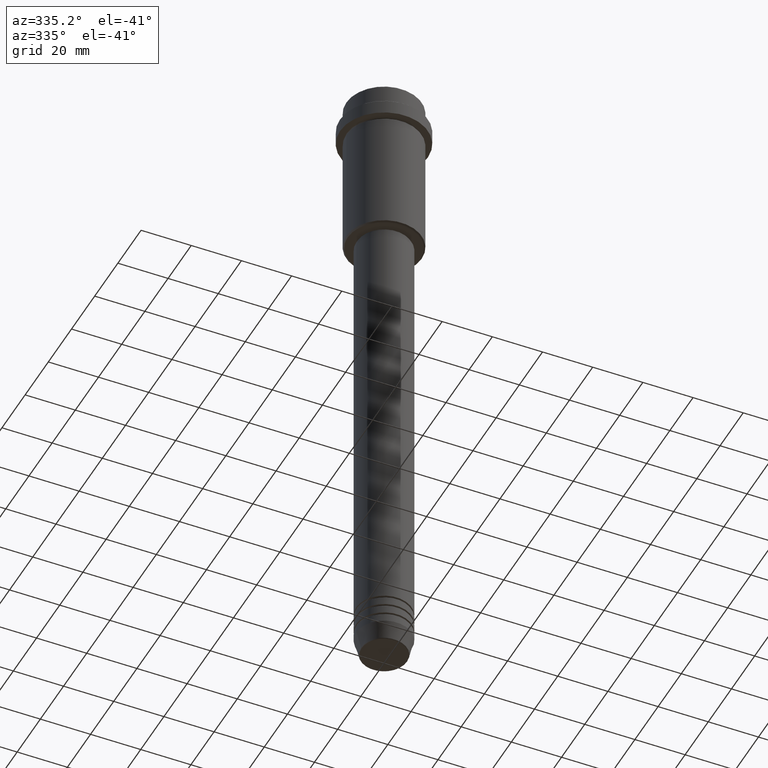
[diagram: clean part render]
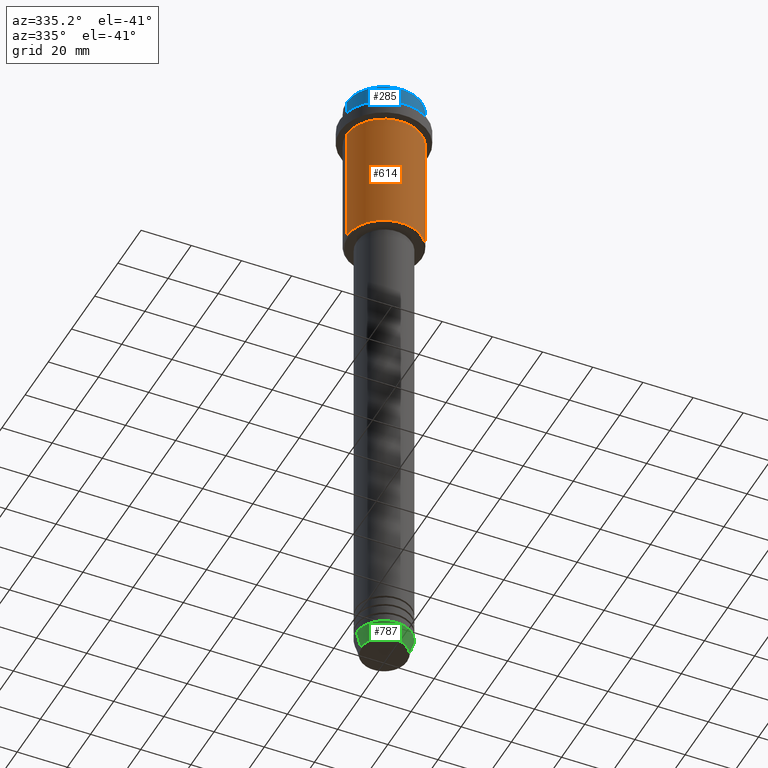
[diagram: same view with three faces highlighted in distinct colors, each labeled with its STEP entity id]
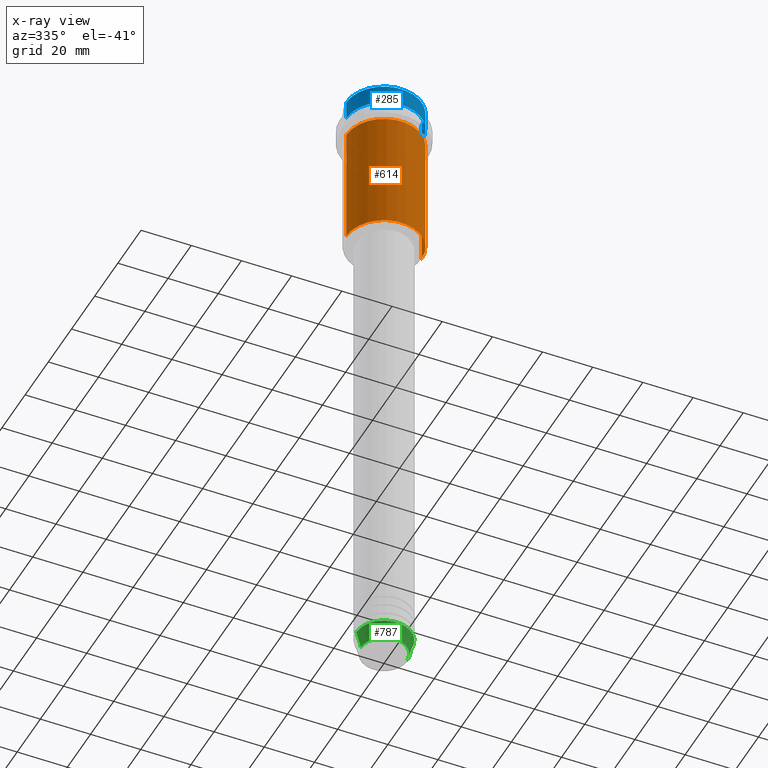
[diagram: x-ray of the same camera — body ghosted, the three highlighted faces saturated]
A machine part, auxiliary view with three faces highlighted in distinct colors.
The next image is the same camera in x-ray (body ghosted, the three faces saturated) — at least one of them is partly hidden behind the body in this view.
Their STEP definitions:

[orange] entity #614 — the highlighted cylindrical surface (partial cylindrical patch) has radius 15 mm, axis along (-0, -0, 1).
#39 = AXIS2_PLACEMENT_3D ( 'NONE', #1043, #170, #61 ) ;
#61 = DIRECTION ( 'NONE',  ( 1.000000000000000000, 0.000000000000000000, 0.000000000000000000 ) ) ;
#67 = ORIENTED_EDGE ( 'NONE', *, *, #513, .F. ) ;
#104 = CARTESIAN_POINT ( 'NONE',  ( -15.00000000000000000, 1.836970198721029589E-15, 0.000000000000000000 ) ) ;
#140 = EDGE_LOOP ( 'NONE', ( #67, #1231, #756, #618 ) ) ;
#165 = DIRECTION ( 'NONE',  ( -0.000000000000000000, -0.000000000000000000, 1.000000000000000000 ) ) ;
#170 = DIRECTION ( 'NONE',  ( -0.000000000000000000, -0.000000000000000000, 1.000000000000000000 ) ) ;
#251 = DIRECTION ( 'NONE',  ( 1.000000000000000000, 0.000000000000000000, 0.000000000000000000 ) ) ;
#281 = AXIS2_PLACEMENT_3D ( 'NONE', #1236, #1013, #710 ) ;
#327 = CARTESIAN_POINT ( 'NONE',  ( 15.00000000000000000, 0.000000000000000000, -64.49999999999995737 ) ) ;
#340 = CARTESIAN_POINT ( 'NONE',  ( 0.000000000000000000, 0.000000000000000000, -16.00000000000000000 ) ) ;
#343 = LINE ( 'NONE', #893, #1241 ) ;
#402 = CIRCLE ( 'NONE', #281, 15.00000000000000000 ) ;
#436 = AXIS2_PLACEMENT_3D ( 'NONE', #340, #1252, #251 ) ;
#513 = EDGE_CURVE ( 'NONE', #714, #794, #1081, .T. ) ;
#596 = CARTESIAN_POINT ( 'NONE',  ( 15.00000000000000178, 0.000000000000000000, -16.00000000000000000 ) ) ;
#606 = CYLINDRICAL_SURFACE ( 'NONE', #39, 15.00000000000000000 ) ;
#614 = ADVANCED_FACE ( 'NONE', ( #1026 ), #606, .T. ) ;
#618 = ORIENTED_EDGE ( 'NONE', *, *, #817, .F. ) ;
#620 = VERTEX_POINT ( 'NONE', #596 ) ;
#671 = EDGE_CURVE ( 'NONE', #714, #1359, #402, .T. ) ;
#678 = CARTESIAN_POINT ( 'NONE',  ( -15.00000000000000000, 1.836970198721029589E-15, -64.49999999999995737 ) ) ;
#703 = CIRCLE ( 'NONE', #436, 15.00000000000000178 ) ;
#710 = DIRECTION ( 'NONE',  ( -1.000000000000000000, 0.000000000000000000, 0.000000000000000000 ) ) ;
#714 = VERTEX_POINT ( 'NONE', #678 ) ;
#756 = ORIENTED_EDGE ( 'NONE', *, *, #857, .T. ) ;
#794 = VERTEX_POINT ( 'NONE', #966 ) ;
#817 = EDGE_CURVE ( 'NONE', #794, #620, #703, .T. ) ;
#857 = EDGE_CURVE ( 'NONE', #1359, #620, #343, .T. ) ;
#893 = CARTESIAN_POINT ( 'NONE',  ( 15.00000000000000000, 0.000000000000000000, 0.000000000000000000 ) ) ;
#966 = CARTESIAN_POINT ( 'NONE',  ( -15.00000000000000355, 1.836970198721029983E-15, -16.00000000000000000 ) ) ;
#1013 = DIRECTION ( 'NONE',  ( -0.000000000000000000, -0.000000000000000000, 1.000000000000000000 ) ) ;
#1026 = FACE_OUTER_BOUND ( 'NONE', #140, .T. ) ;
#1043 = CARTESIAN_POINT ( 'NONE',  ( 0.000000000000000000, 0.000000000000000000, 0.000000000000000000 ) ) ;
#1081 = LINE ( 'NONE', #104, #1291 ) ;
#1222 = DIRECTION ( 'NONE',  ( -0.000000000000000000, -0.000000000000000000, 1.000000000000000000 ) ) ;
#1231 = ORIENTED_EDGE ( 'NONE', *, *, #671, .T. ) ;
#1236 = CARTESIAN_POINT ( 'NONE',  ( 0.000000000000000000, 0.000000000000000000, -64.49999999999995737 ) ) ;
#1241 = VECTOR ( 'NONE', #1222, 1000.000000000000000 ) ;
#1252 = DIRECTION ( 'NONE',  ( -0.000000000000000000, -0.000000000000000000, 1.000000000000000000 ) ) ;
#1291 = VECTOR ( 'NONE', #165, 1000.000000000000000 ) ;
#1359 = VERTEX_POINT ( 'NONE', #327 ) ;

[blue] entity #285 — the highlighted cylindrical surface (partial cylindrical patch) has radius 15 mm, axis along (-0, -0, 1).
#21 = EDGE_LOOP ( 'NONE', ( #1270, #372, #740, #684 ) ) ;
#34 = DIRECTION ( 'NONE',  ( 1.000000000000000000, 0.000000000000000000, 0.000000000000000000 ) ) ;
#71 = LINE ( 'NONE', #841, #1189 ) ;
#133 = AXIS2_PLACEMENT_3D ( 'NONE', #858, #1295, #216 ) ;
#175 = AXIS2_PLACEMENT_3D ( 'NONE', #697, #924, #1039 ) ;
#216 = DIRECTION ( 'NONE',  ( 1.000000000000000000, 0.000000000000000000, 0.000000000000000000 ) ) ;
#228 = CARTESIAN_POINT ( 'NONE',  ( -15.00000000000000000, 1.836970198721029589E-15, 0.000000000000000000 ) ) ;
#279 = CARTESIAN_POINT ( 'NONE',  ( -15.00000000000000000, 1.836970198721029589E-15, -7.999999999999998224 ) ) ;
#285 = ADVANCED_FACE ( 'NONE', ( #1288 ), #467, .T. ) ;
#308 = DIRECTION ( 'NONE',  ( -0.000000000000000000, -0.000000000000000000, 1.000000000000000000 ) ) ;
#316 = VERTEX_POINT ( 'NONE', #279 ) ;
#335 = DIRECTION ( 'NONE',  ( -0.000000000000000000, -0.000000000000000000, 1.000000000000000000 ) ) ;
#372 = ORIENTED_EDGE ( 'NONE', *, *, #512, .T. ) ;
#424 = CIRCLE ( 'NONE', #133, 15.00000000000000000 ) ;
#467 = CYLINDRICAL_SURFACE ( 'NONE', #986, 15.00000000000000000 ) ;
#512 = EDGE_CURVE ( 'NONE', #316, #913, #424, .T. ) ;
#520 = CARTESIAN_POINT ( 'NONE',  ( -15.00000000000000000, 1.836970198721029589E-15, -0.5000000000000108802 ) ) ;
#544 = VECTOR ( 'NONE', #335, 1000.000000000000000 ) ;
#559 = CARTESIAN_POINT ( 'NONE',  ( 15.00000000000000000, 0.000000000000000000, -7.999999999999998224 ) ) ;
#574 = CARTESIAN_POINT ( 'NONE',  ( 0.000000000000000000, 0.000000000000000000, 0.000000000000000000 ) ) ;
#584 = CARTESIAN_POINT ( 'NONE',  ( 15.00000000000000000, 0.000000000000000000, -0.5000000000000108802 ) ) ;
#597 = CIRCLE ( 'NONE', #175, 15.00000000000000000 ) ;
#684 = ORIENTED_EDGE ( 'NONE', *, *, #1020, .T. ) ;
#697 = CARTESIAN_POINT ( 'NONE',  ( 0.000000000000000000, 0.000000000000000000, -0.5000000000000108802 ) ) ;
#740 = ORIENTED_EDGE ( 'NONE', *, *, #1216, .T. ) ;
#763 = VERTEX_POINT ( 'NONE', #520 ) ;
#841 = CARTESIAN_POINT ( 'NONE',  ( 15.00000000000000000, 0.000000000000000000, 0.000000000000000000 ) ) ;
#858 = CARTESIAN_POINT ( 'NONE',  ( 0.000000000000000000, 0.000000000000000000, -7.999999999999998224 ) ) ;
#913 = VERTEX_POINT ( 'NONE', #559 ) ;
#924 = DIRECTION ( 'NONE',  ( 0.000000000000000000, 0.000000000000000000, -1.000000000000000000 ) ) ;
#945 = EDGE_CURVE ( 'NONE', #316, #763, #1314, .T. ) ;
#986 = AXIS2_PLACEMENT_3D ( 'NONE', #574, #1011, #34 ) ;
#1011 = DIRECTION ( 'NONE',  ( -0.000000000000000000, -0.000000000000000000, 1.000000000000000000 ) ) ;
#1020 = EDGE_CURVE ( 'NONE', #1067, #763, #597, .T. ) ;
#1039 = DIRECTION ( 'NONE',  ( 1.000000000000000000, 0.000000000000000000, 0.000000000000000000 ) ) ;
#1067 = VERTEX_POINT ( 'NONE', #584 ) ;
#1189 = VECTOR ( 'NONE', #308, 1000.000000000000000 ) ;
#1216 = EDGE_CURVE ( 'NONE', #913, #1067, #71, .T. ) ;
#1270 = ORIENTED_EDGE ( 'NONE', *, *, #945, .F. ) ;
#1288 = FACE_OUTER_BOUND ( 'NONE', #21, .T. ) ;
#1295 = DIRECTION ( 'NONE',  ( -0.000000000000000000, -0.000000000000000000, 1.000000000000000000 ) ) ;
#1314 = LINE ( 'NONE', #228, #544 ) ;

[green] entity #787 — the highlighted conical surface has half-angle 15 deg.
#4 = ORIENTED_EDGE ( 'NONE', *, *, #81, .F. ) ;
#81 = EDGE_CURVE ( 'NONE', #647, #399, #87, .T. ) ;
#87 = LINE ( 'NONE', #657, #1029 ) ;
#99 = DIRECTION ( 'NONE',  ( 1.000000000000000000, 0.000000000000000000, 0.000000000000000000 ) ) ;
#161 = AXIS2_PLACEMENT_3D ( 'NONE', #389, #922, #1153 ) ;
#188 = DIRECTION ( 'NONE',  ( 0.2588190451025213501, 0.000000000000000000, 0.9659258262890680902 ) ) ;
#332 = VERTEX_POINT ( 'NONE', #1021 ) ;
#349 = CARTESIAN_POINT ( 'NONE',  ( 0.000000000000000000, 0.000000000000000000, -253.0000000000000000 ) ) ;
#389 = CARTESIAN_POINT ( 'NONE',  ( 0.000000000000000000, 0.000000000000000000, -259.6294095225512706 ) ) ;
#399 = VERTEX_POINT ( 'NONE', #786 ) ;
#412 = AXIS2_PLACEMENT_3D ( 'NONE', #349, #557, #99 ) ;
#441 = DIRECTION ( 'NONE',  ( -0.2588190451025213501, 3.169619151431772337E-17, 0.9659258262890680902 ) ) ;
#464 = DIRECTION ( 'NONE',  ( -0.000000000000000000, -0.000000000000000000, 1.000000000000000000 ) ) ;
#505 = CIRCLE ( 'NONE', #412, 11.00000000000000000 ) ;
#522 = EDGE_CURVE ( 'NONE', #332, #655, #1373, .T. ) ;
#529 = EDGE_CURVE ( 'NONE', #647, #332, #932, .T. ) ;
#557 = DIRECTION ( 'NONE',  ( -0.000000000000000000, -0.000000000000000000, 1.000000000000000000 ) ) ;
#570 = FACE_OUTER_BOUND ( 'NONE', #677, .T. ) ;
#586 = ORIENTED_EDGE ( 'NONE', *, *, #1310, .F. ) ;
#647 = VERTEX_POINT ( 'NONE', #891 ) ;
#655 = VERTEX_POINT ( 'NONE', #1417 ) ;
#657 = CARTESIAN_POINT ( 'NONE',  ( -11.00000000000000000, 1.347111479062088405E-15, -253.0000000000000000 ) ) ;
#677 = EDGE_LOOP ( 'NONE', ( #4, #1372, #1340, #586 ) ) ;
#728 = CARTESIAN_POINT ( 'NONE',  ( 11.00000000000000000, 0.000000000000000000, -253.0000000000000000 ) ) ;
#786 = CARTESIAN_POINT ( 'NONE',  ( -11.00000000000000000, 1.347111479062088405E-15, -253.0000000000000000 ) ) ;
#787 = ADVANCED_FACE ( 'NONE', ( #570 ), #850, .T. ) ;
#813 = CARTESIAN_POINT ( 'NONE',  ( 0.000000000000000000, 0.000000000000000000, -253.0000000000000000 ) ) ;
#850 = CONICAL_SURFACE ( 'NONE', #1398, 11.00000000000000000, 0.2617993877991500740 ) ;
#891 = CARTESIAN_POINT ( 'NONE',  ( -9.223655072137189492, 1.238341722557647202E-15, -259.6294095225512706 ) ) ;
#903 = DIRECTION ( 'NONE',  ( 1.000000000000000000, 0.000000000000000000, 0.000000000000000000 ) ) ;
#922 = DIRECTION ( 'NONE',  ( -0.000000000000000000, -0.000000000000000000, 1.000000000000000000 ) ) ;
#932 = CIRCLE ( 'NONE', #161, 9.223655072137189492 ) ;
#1021 = CARTESIAN_POINT ( 'NONE',  ( 9.223655072137189492, 0.000000000000000000, -259.6294095225512706 ) ) ;
#1029 = VECTOR ( 'NONE', #441, 1000.000000000000000 ) ;
#1089 = VECTOR ( 'NONE', #188, 1000.000000000000000 ) ;
#1153 = DIRECTION ( 'NONE',  ( 1.000000000000000000, 0.000000000000000000, 0.000000000000000000 ) ) ;
#1310 = EDGE_CURVE ( 'NONE', #399, #655, #505, .T. ) ;
#1340 = ORIENTED_EDGE ( 'NONE', *, *, #522, .T. ) ;
#1372 = ORIENTED_EDGE ( 'NONE', *, *, #529, .T. ) ;
#1373 = LINE ( 'NONE', #728, #1089 ) ;
#1398 = AXIS2_PLACEMENT_3D ( 'NONE', #813, #464, #903 ) ;
#1417 = CARTESIAN_POINT ( 'NONE',  ( 11.00000000000000000, 0.000000000000000000, -253.0000000000000000 ) ) ;